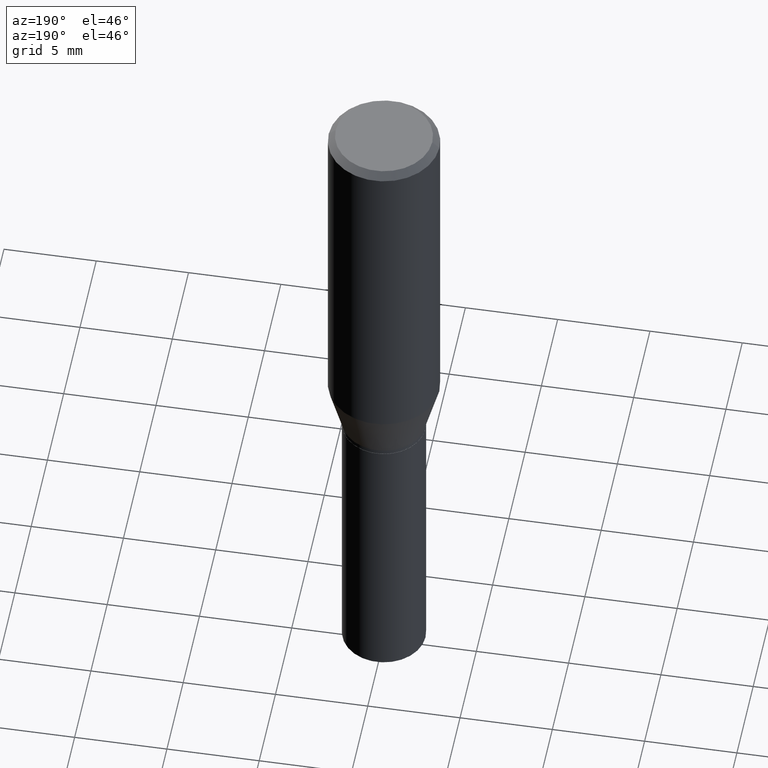
[diagram: clean part render]
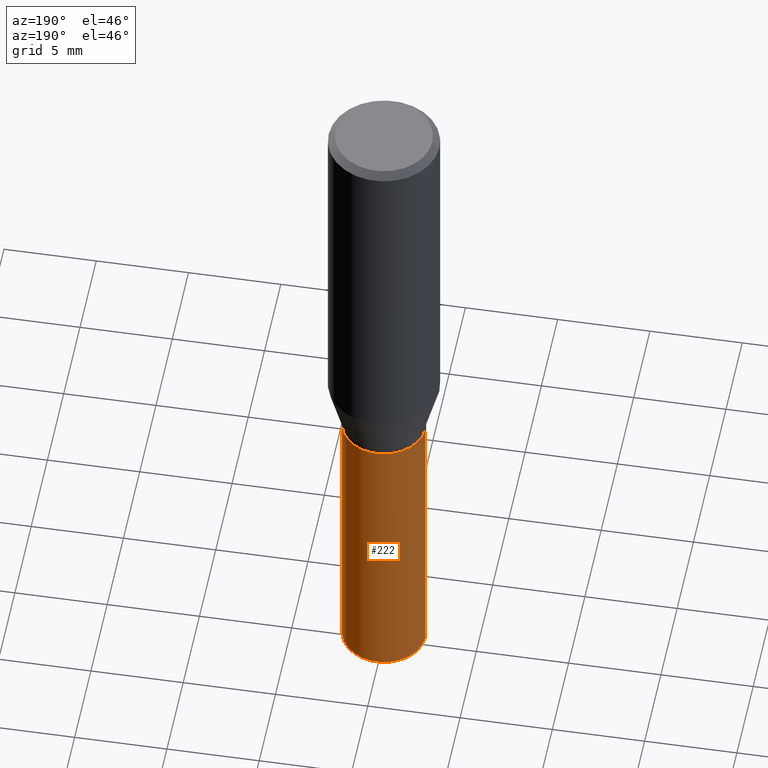
[diagram: same view with one face highlighted and labeled with its STEP entity id]
A machine part, auxiliary view. The second image highlights one B-rep face of the part: STEP entity #222.
In plain terms, the highlighted cylindrical surface (partial cylindrical patch) has radius 2.2504 mm, axis along (-0, 0, 1).
Its self-contained STEP definition (entity closure, byte-faithful):
#26 = VERTEX_POINT ( 'NONE', #153 ) ;
#55 = AXIS2_PLACEMENT_3D ( 'NONE', #141, #129, #242 ) ;
#58 = ORIENTED_EDGE ( 'NONE', *, *, #358, .F. ) ;
#74 = AXIS2_PLACEMENT_3D ( 'NONE', #402, #104, #218 ) ;
#75 = CARTESIAN_POINT ( 'NONE',  ( -0.08859999999999999820, -3.508039096712621630E-15, -1.500000000000000222 ) ) ;
#87 = EDGE_LOOP ( 'NONE', ( #353, #94, #58, #387 ) ) ;
#89 = VERTEX_POINT ( 'NONE', #214 ) ;
#94 = ORIENTED_EDGE ( 'NONE', *, *, #437, .T. ) ;
#102 = FACE_OUTER_BOUND ( 'NONE', #87, .T. ) ;
#104 = DIRECTION ( 'NONE',  ( -2.445468806185136597E-29, 3.491481338843145583E-15, 1.000000000000000000 ) ) ;
#129 = DIRECTION ( 'NONE',  ( -2.445468806185136597E-29, 3.491481338843145583E-15, 1.000000000000000000 ) ) ;
#134 = CIRCLE ( 'NONE', #372, 0.08859999999999999820 ) ;
#141 = CARTESIAN_POINT ( 'NONE',  ( 0.000000000000000000, 0.000000000000000000, 0.000000000000000000 ) ) ;
#148 = LINE ( 'NONE', #408, #296 ) ;
#153 = CARTESIAN_POINT ( 'NONE',  ( -0.08859999999999999820, -3.508039096712621630E-15, -0.8701000000000000956 ) ) ;
#163 = LINE ( 'NONE', #333, #199 ) ;
#174 = CYLINDRICAL_SURFACE ( 'NONE', #55, 0.08859999999999999820 ) ;
#183 = EDGE_CURVE ( 'NONE', #448, #201, #134, .T. ) ;
#199 = VECTOR ( 'NONE', #226, 39.37007874015748143 ) ;
#201 = VERTEX_POINT ( 'NONE', #75 ) ;
#211 = DIRECTION ( 'NONE',  ( 1.000000000000000000, -6.982962677686269077E-15, 0.000000000000000000 ) ) ;
#214 = CARTESIAN_POINT ( 'NONE',  ( 0.08859999999999999820, -3.656628406170424159E-15, -0.8701000000000000956 ) ) ;
#218 = DIRECTION ( 'NONE',  ( 1.000000000000000000, -6.982962677686263555E-15, 0.000000000000000000 ) ) ;
#222 = ADVANCED_FACE ( 'NONE', ( #102 ), #174, .T. ) ;
#226 = DIRECTION ( 'NONE',  ( -2.445468806185136877E-29, 3.491481338843145188E-15, 1.000000000000000000 ) ) ;
#242 = DIRECTION ( 'NONE',  ( 1.000000000000000000, -6.982962677686266711E-15, 4.876176775795935232E-29 ) ) ;
#261 = EDGE_CURVE ( 'NONE', #448, #89, #148, .T. ) ;
#296 = VECTOR ( 'NONE', #329, 39.37007874015748143 ) ;
#310 = CARTESIAN_POINT ( 'NONE',  ( 0.08859999999999999820, -5.855912501507721918E-15, -1.500000000000000222 ) ) ;
#320 = DIRECTION ( 'NONE',  ( -2.445468806185136597E-29, 3.491481338843145583E-15, 1.000000000000000000 ) ) ;
#329 = DIRECTION ( 'NONE',  ( -2.445468806185136877E-29, 3.491481338843145188E-15, 1.000000000000000000 ) ) ;
#333 = CARTESIAN_POINT ( 'NONE',  ( -0.08859999999999999820, 6.295408638834487519E-16, -4.358176489965846267E-30 ) ) ;
#353 = ORIENTED_EDGE ( 'NONE', *, *, #183, .T. ) ;
#358 = EDGE_CURVE ( 'NONE', #89, #26, #400, .T. ) ;
#372 = AXIS2_PLACEMENT_3D ( 'NONE', #433, #320, #211 ) ;
#387 = ORIENTED_EDGE ( 'NONE', *, *, #261, .F. ) ;
#400 = CIRCLE ( 'NONE', #74, 0.08859999999999999820 ) ;
#402 = CARTESIAN_POINT ( 'NONE',  ( 2.127802408261687534E-29, -3.037937912927421601E-15, -0.8701000000000000956 ) ) ;
#408 = CARTESIAN_POINT ( 'NONE',  ( 0.08859999999999999820, -6.186904932430032487E-16, 4.320292623355198765E-30 ) ) ;
#433 = CARTESIAN_POINT ( 'NONE',  ( 3.668203209277704895E-29, -5.237222008264718177E-15, -1.500000000000000222 ) ) ;
#437 = EDGE_CURVE ( 'NONE', #201, #26, #163, .T. ) ;
#448 = VERTEX_POINT ( 'NONE', #310 ) ;